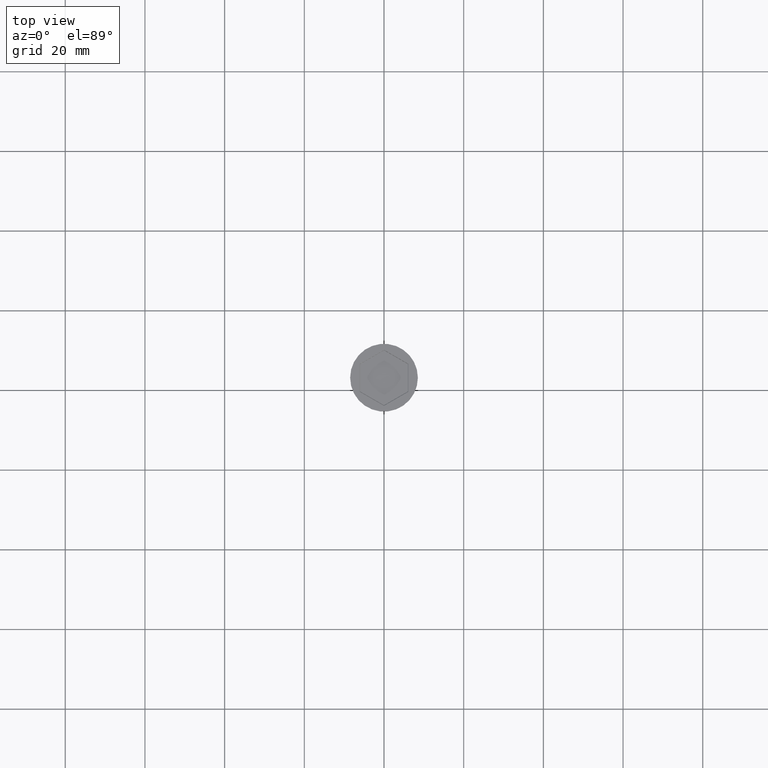
[diagram: clean part render]
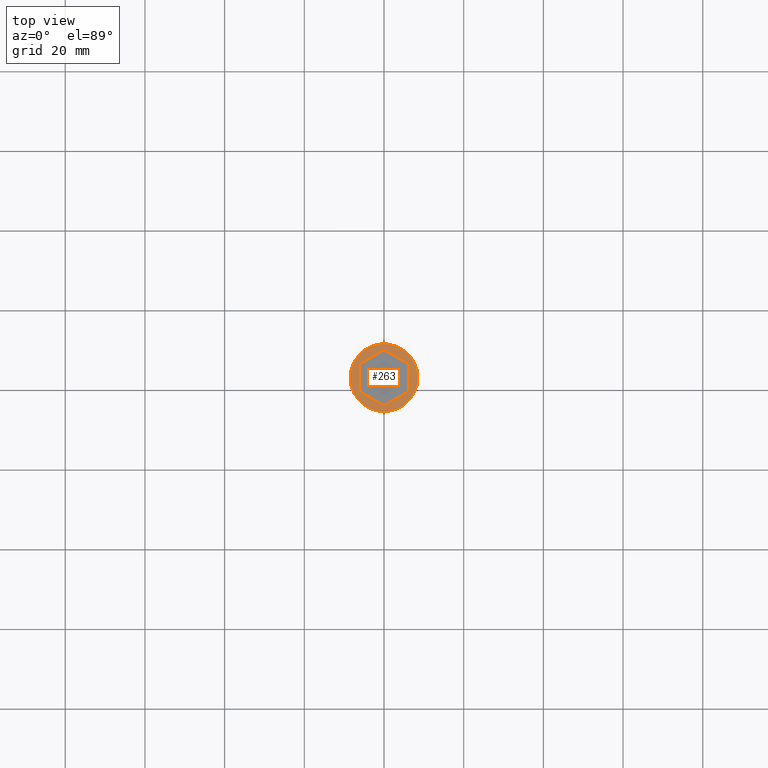
[diagram: same view with one face highlighted and labeled with its STEP entity id]
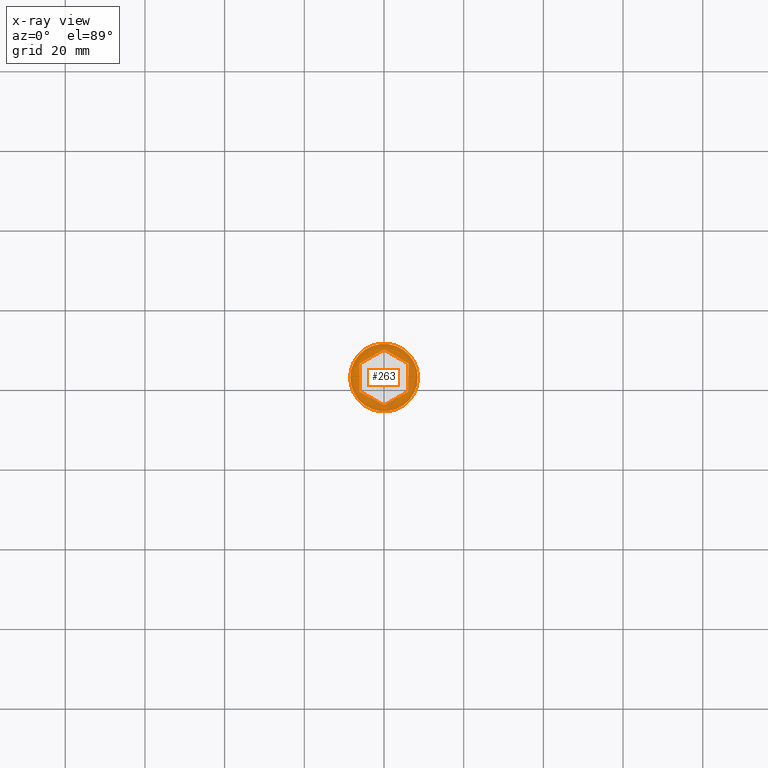
[diagram: x-ray of the same camera — body ghosted, the highlighted face saturated]
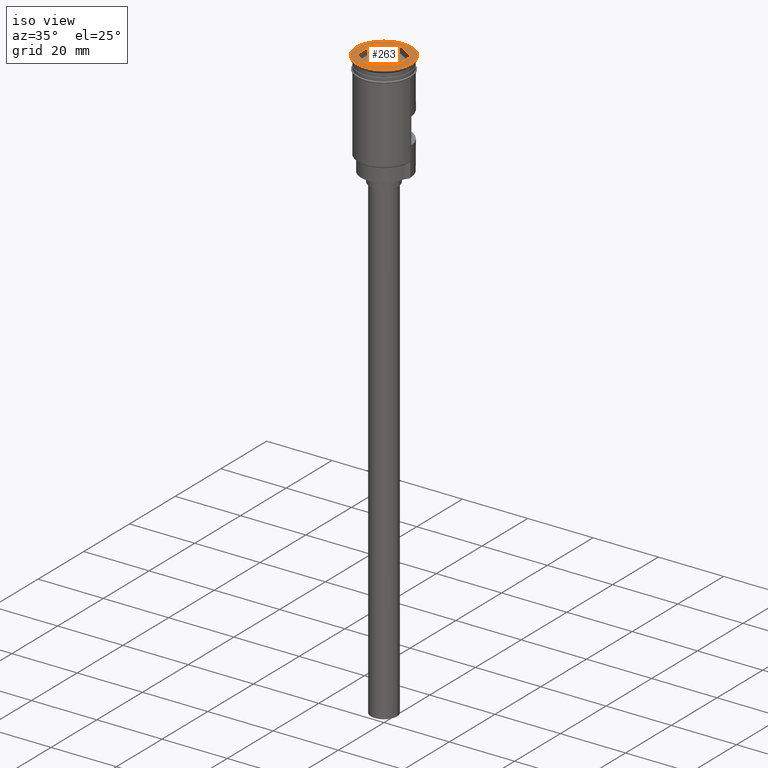
[diagram: same view with one face highlighted and labeled with its STEP entity id]
A machine part, top view. The second image highlights one B-rep face of the part: STEP entity #263.
The next image is the same camera in x-ray: the body ghosted, the highlighted face saturated — about 0% of this face is hidden behind the body in this view.
A second angle (iso view) of the same face is appended — the face is thin or edge-on in the first view.
In plain terms, the highlighted planar face has unit normal (0, -0, 1).
Its self-contained STEP definition (entity closure, byte-faithful):
#5 = DIRECTION ( 'NONE',  ( -0.000000000000000000, -0.000000000000000000, 1.000000000000000000 ) ) ;
#38 = AXIS2_PLACEMENT_3D ( 'NONE', #1104, #5, #1244 ) ;
#58 = DIRECTION ( 'NONE',  ( 0.000000000000000000, -0.000000000000000000, 1.000000000000000000 ) ) ;
#90 = CIRCLE ( 'NONE', #38, 8.500000000000000000 ) ;
#128 = VERTEX_POINT ( 'NONE', #439 ) ;
#158 = DIRECTION ( 'NONE',  ( 0.000000000000000000, -1.000000000000000000, -0.000000000000000000 ) ) ;
#172 = CARTESIAN_POINT ( 'NONE',  ( -0.05000000000000349998, 7.014805770653958383, 0.000000000000000000 ) ) ;
#189 = CARTESIAN_POINT ( 'NONE',  ( -6.050000000000004263, -3.550704155516205773, 0.000000000000000000 ) ) ;
#234 = EDGE_LOOP ( 'NONE', ( #465, #1600 ) ) ;
#240 = VERTEX_POINT ( 'NONE', #1354 ) ;
#259 = ORIENTED_EDGE ( 'NONE', *, *, #1315, .T. ) ;
#263 = ADVANCED_FACE ( 'NONE', ( #653, #924 ), #679, .T. ) ;
#274 = VERTEX_POINT ( 'NONE', #932 ) ;
#336 = CARTESIAN_POINT ( 'NONE',  ( -8.500000000000000000, 1.040949779275250140E-15, 0.000000000000000000 ) ) ;
#340 = ORIENTED_EDGE ( 'NONE', *, *, #735, .T. ) ;
#362 = LINE ( 'NONE', #1078, #1274 ) ;
#367 = DIRECTION ( 'NONE',  ( -1.251928832280966188E-16, 1.000000000000000000, 0.000000000000000000 ) ) ;
#389 = EDGE_CURVE ( 'NONE', #240, #1197, #1272, .T. ) ;
#421 = CARTESIAN_POINT ( 'NONE',  ( 0.000000000000000000, 0.000000000000000000, 0.000000000000000000 ) ) ;
#439 = CARTESIAN_POINT ( 'NONE',  ( 6.100000000000007638, 3.521836642056720201, 0.000000000000000000 ) ) ;
#465 = ORIENTED_EDGE ( 'NONE', *, *, #638, .T. ) ;
#467 = CARTESIAN_POINT ( 'NONE',  ( 6.606856988583603042E-17, -7.043673284113445732, 0.000000000000000000 ) ) ;
#470 = DIRECTION ( 'NONE',  ( -0.8660254037844385966, -0.5000000000000002220, 0.000000000000000000 ) ) ;
#531 = VERTEX_POINT ( 'NONE', #467 ) ;
#550 = EDGE_CURVE ( 'NONE', #1197, #128, #601, .T. ) ;
#568 = EDGE_LOOP ( 'NONE', ( #1088, #1503, #667, #259, #902, #340 ) ) ;
#575 = DIRECTION ( 'NONE',  ( 0.8660254037844387076, -0.4999999999999998335, 0.000000000000000000 ) ) ;
#584 = VERTEX_POINT ( 'NONE', #1496 ) ;
#601 = LINE ( 'NONE', #1307, #1243 ) ;
#611 = VECTOR ( 'NONE', #1151, 999.9999999999998863 ) ;
#638 = EDGE_CURVE ( 'NONE', #1336, #1385, #90, .T. ) ;
#653 = FACE_BOUND ( 'NONE', #568, .T. ) ;
#664 = VECTOR ( 'NONE', #367, 1000.000000000000000 ) ;
#667 = ORIENTED_EDGE ( 'NONE', *, *, #550, .T. ) ;
#668 = DIRECTION ( 'NONE',  ( 0.8660254037844385966, 0.5000000000000002220, 0.000000000000000000 ) ) ;
#679 = PLANE ( 'NONE',  #1167 ) ;
#735 = EDGE_CURVE ( 'NONE', #531, #274, #1290, .T. ) ;
#771 = CARTESIAN_POINT ( 'NONE',  ( 0.000000000000000000, 0.000000000000000000, 0.000000000000000000 ) ) ;
#776 = DIRECTION ( 'NONE',  ( 1.000000000000000000, 0.000000000000000000, 0.000000000000000000 ) ) ;
#891 = VECTOR ( 'NONE', #158, 1000.000000000000000 ) ;
#902 = ORIENTED_EDGE ( 'NONE', *, *, #1122, .T. ) ;
#924 = FACE_OUTER_BOUND ( 'NONE', #234, .T. ) ;
#932 = CARTESIAN_POINT ( 'NONE',  ( -6.100000000000007638, -3.521836642056722866, 0.000000000000000000 ) ) ;
#953 = CARTESIAN_POINT ( 'NONE',  ( -6.100000000000008527, 3.464101615137752166, 0.000000000000000000 ) ) ;
#987 = CARTESIAN_POINT ( 'NONE',  ( 8.500000000000000000, 0.000000000000000000, 0.000000000000000000 ) ) ;
#993 = CIRCLE ( 'NONE', #1247, 8.500000000000000000 ) ;
#1017 = CARTESIAN_POINT ( 'NONE',  ( 6.100000000000007638, -3.464101615137756607, 0.000000000000000000 ) ) ;
#1078 = CARTESIAN_POINT ( 'NONE',  ( 0.05000000000000536654, -7.014805770653961048, 0.000000000000000000 ) ) ;
#1088 = ORIENTED_EDGE ( 'NONE', *, *, #1154, .T. ) ;
#1104 = CARTESIAN_POINT ( 'NONE',  ( 0.000000000000000000, 0.000000000000000000, 0.000000000000000000 ) ) ;
#1109 = DIRECTION ( 'NONE',  ( -0.000000000000000000, -0.000000000000000000, 1.000000000000000000 ) ) ;
#1122 = EDGE_CURVE ( 'NONE', #584, #531, #362, .T. ) ;
#1151 = DIRECTION ( 'NONE',  ( -0.8660254037844385966, 0.5000000000000002220, 0.000000000000000000 ) ) ;
#1154 = EDGE_CURVE ( 'NONE', #274, #240, #1571, .T. ) ;
#1163 = DIRECTION ( 'NONE',  ( 1.000000000000000000, 0.000000000000000000, 0.000000000000000000 ) ) ;
#1167 = AXIS2_PLACEMENT_3D ( 'NONE', #421, #58, #1163 ) ;
#1194 = EDGE_CURVE ( 'NONE', #1385, #1336, #993, .T. ) ;
#1197 = VERTEX_POINT ( 'NONE', #1512 ) ;
#1243 = VECTOR ( 'NONE', #575, 1000.000000000000000 ) ;
#1244 = DIRECTION ( 'NONE',  ( 1.000000000000000000, 0.000000000000000000, 0.000000000000000000 ) ) ;
#1247 = AXIS2_PLACEMENT_3D ( 'NONE', #771, #1109, #776 ) ;
#1259 = LINE ( 'NONE', #1017, #891 ) ;
#1272 = LINE ( 'NONE', #172, #1484 ) ;
#1274 = VECTOR ( 'NONE', #470, 999.9999999999998863 ) ;
#1290 = LINE ( 'NONE', #189, #611 ) ;
#1307 = CARTESIAN_POINT ( 'NONE',  ( 6.050000000000003375, 3.550704155516203553, 0.000000000000000000 ) ) ;
#1315 = EDGE_CURVE ( 'NONE', #128, #584, #1259, .T. ) ;
#1336 = VERTEX_POINT ( 'NONE', #987 ) ;
#1354 = CARTESIAN_POINT ( 'NONE',  ( -6.100000000000008527, 3.521836642056717537, 0.000000000000000000 ) ) ;
#1385 = VERTEX_POINT ( 'NONE', #336 ) ;
#1484 = VECTOR ( 'NONE', #668, 999.9999999999998863 ) ;
#1496 = CARTESIAN_POINT ( 'NONE',  ( 6.100000000000007638, -3.521836642056722866, 0.000000000000000000 ) ) ;
#1503 = ORIENTED_EDGE ( 'NONE', *, *, #389, .T. ) ;
#1512 = CARTESIAN_POINT ( 'NONE',  ( -9.509961900721253228E-16, 7.043673284113440403, 0.000000000000000000 ) ) ;
#1571 = LINE ( 'NONE', #953, #664 ) ;
#1600 = ORIENTED_EDGE ( 'NONE', *, *, #1194, .T. ) ;